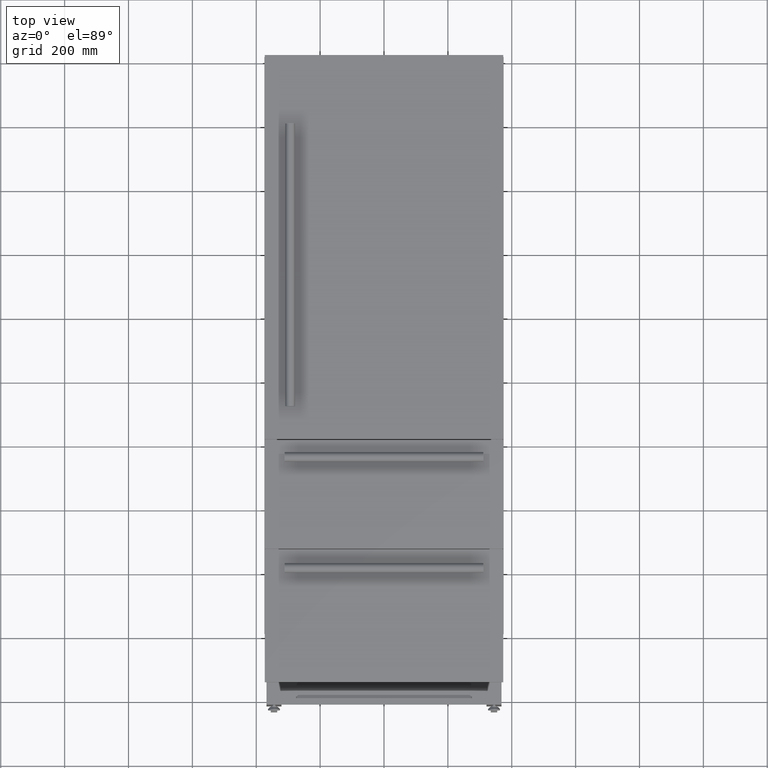
[diagram: clean part render]
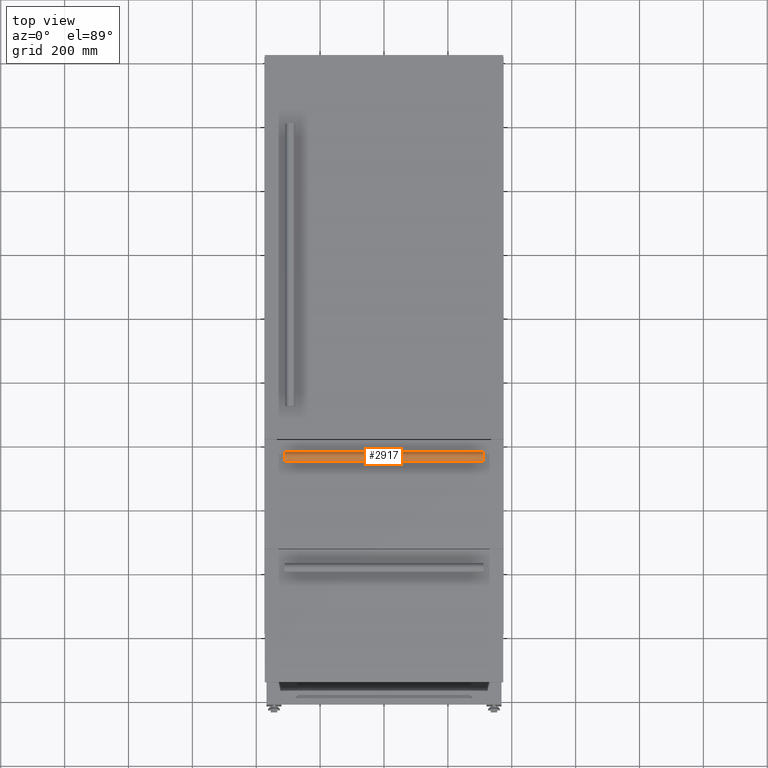
[diagram: same view with one face highlighted and labeled with its STEP entity id]
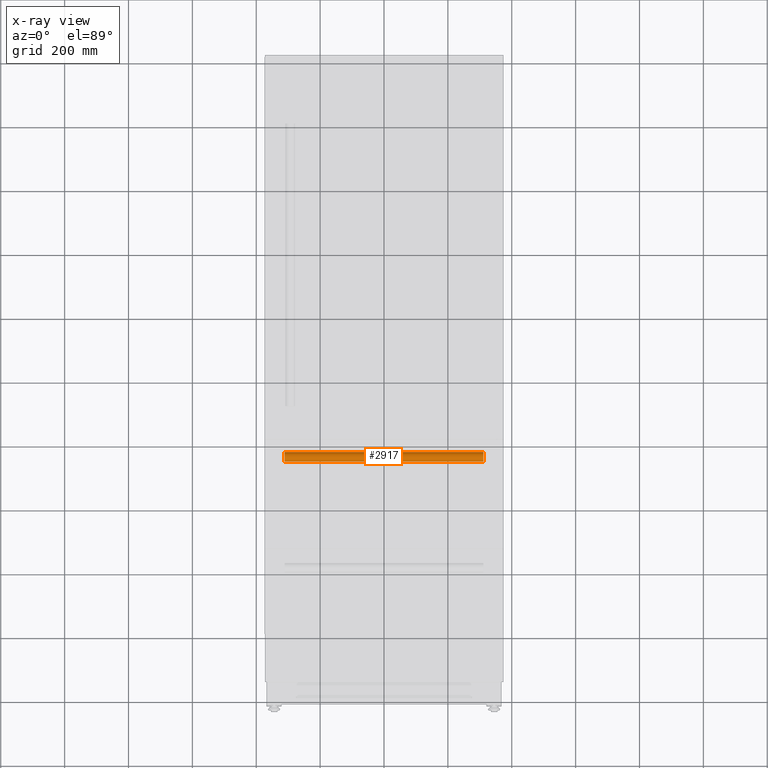
[diagram: x-ray of the same camera — body ghosted, the highlighted face saturated]
A machine part, top view. The second image highlights one B-rep face of the part: STEP entity #2917.
The next image is the same camera in x-ray: the body ghosted, the highlighted face saturated — about 0% of this face is hidden behind the body in this view.
In plain terms, the highlighted cylindrical surface (edge-blend (fillet) strip) has radius 15 mm, axis along (-1, 0, -0).
Its self-contained STEP definition (entity closure, byte-faithful):
#58 = VERTEX_POINT ( 'NONE', #3712 ) ;
#319 = EDGE_CURVE ( 'NONE', #865, #4366, #5090, .T. ) ;
#865 = VERTEX_POINT ( 'NONE', #14129 ) ;
#2308 = CARTESIAN_POINT ( 'NONE',  ( 353.7264065882275200, -258.1500000000000300, 399.0000000000000000 ) ) ;
#2508 = DIRECTION ( 'NONE',  ( 1.000000000000000000, -0.0000000000000000000, -0.0000000000000000000 ) ) ;
#2879 = CARTESIAN_POINT ( 'NONE',  ( 353.7264065882275200, -243.1500000000000100, 399.0000000000000000 ) ) ;
#2917 = ADVANCED_FACE ( 'NONE', ( #9917 ), #13351, .T. ) ;
#3527 = DIRECTION ( 'NONE',  ( 0.0000000000000000000, 1.000000000000000000, 0.0000000000000000000 ) ) ;
#3712 = CARTESIAN_POINT ( 'NONE',  ( 311.2999997170346100, -228.1499999999999800, 399.0000000000000000 ) ) ;
#4366 = VERTEX_POINT ( 'NONE', #4506 ) ;
#4506 = CARTESIAN_POINT ( 'NONE',  ( -311.2999997170347200, -258.1499999999999800, 399.0000000000000000 ) ) ;
#4645 = ORIENTED_EDGE ( 'NONE', *, *, #319, .F. ) ;
#4946 = CARTESIAN_POINT ( 'NONE',  ( 353.7264065882275200, -228.1499999999999800, 399.0000000000000000 ) ) ;
#5090 = LINE ( 'NONE', #2308, #13215 ) ;
#5797 = EDGE_CURVE ( 'NONE', #58, #11216, #6550, .T. ) ;
#6195 = ORIENTED_EDGE ( 'NONE', *, *, #5797, .T. ) ;
#6216 = EDGE_LOOP ( 'NONE', ( #10048, #6195, #8371, #4645 ) ) ;
#6550 = LINE ( 'NONE', #4946, #7054 ) ;
#6601 = EDGE_CURVE ( 'NONE', #58, #865, #7196, .T. ) ;
#7054 = VECTOR ( 'NONE', #14004, 1000.000000000000000 ) ;
#7196 = CIRCLE ( 'NONE', #13757, 15.00000000000004100 ) ;
#7831 = AXIS2_PLACEMENT_3D ( 'NONE', #2879, #11894, #8460 ) ;
#8371 = ORIENTED_EDGE ( 'NONE', *, *, #10075, .T. ) ;
#8460 = DIRECTION ( 'NONE',  ( 0.0000000000000000000, -1.000000000000000000, 0.0000000000000000000 ) ) ;
#8549 = CIRCLE ( 'NONE', #10421, 15.00000000000001400 ) ;
#9003 = DIRECTION ( 'NONE',  ( -1.000000000000000000, 8.410780489584520400E-017, -0.0000000000000000000 ) ) ;
#9026 = DIRECTION ( 'NONE',  ( 1.000000000000000000, -1.682156097916904100E-016, 0.0000000000000000000 ) ) ;
#9117 = CARTESIAN_POINT ( 'NONE',  ( 311.2999997170346100, -243.1500000000000100, 399.0000000000000000 ) ) ;
#9917 = FACE_OUTER_BOUND ( 'NONE', #6216, .T. ) ;
#10048 = ORIENTED_EDGE ( 'NONE', *, *, #6601, .F. ) ;
#10075 = EDGE_CURVE ( 'NONE', #11216, #4366, #8549, .T. ) ;
#10421 = AXIS2_PLACEMENT_3D ( 'NONE', #12290, #2508, #12385 ) ;
#11216 = VERTEX_POINT ( 'NONE', #13623 ) ;
#11894 = DIRECTION ( 'NONE',  ( -1.000000000000000000, 8.410780489584521600E-017, -0.0000000000000000000 ) ) ;
#12290 = CARTESIAN_POINT ( 'NONE',  ( -311.2999997170347200, -243.1499999999999500, 399.0000000000000000 ) ) ;
#12385 = DIRECTION ( 'NONE',  ( 0.0000000000000000000, 0.0000000000000000000, 1.000000000000000000 ) ) ;
#13215 = VECTOR ( 'NONE', #9003, 1000.000000000000000 ) ;
#13351 = CYLINDRICAL_SURFACE ( 'NONE', #7831, 15.00000000000004100 ) ;
#13623 = CARTESIAN_POINT ( 'NONE',  ( -311.2999997170347200, -228.1499999999999200, 399.0000000000000000 ) ) ;
#13757 = AXIS2_PLACEMENT_3D ( 'NONE', #9117, #9026, #3527 ) ;
#14004 = DIRECTION ( 'NONE',  ( -1.000000000000000000, 8.410780489584520400E-017, -0.0000000000000000000 ) ) ;
#14129 = CARTESIAN_POINT ( 'NONE',  ( 311.2999997170346100, -258.1500000000000300, 399.0000000000000000 ) ) ;